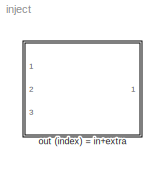
MODEL inject
KIND model
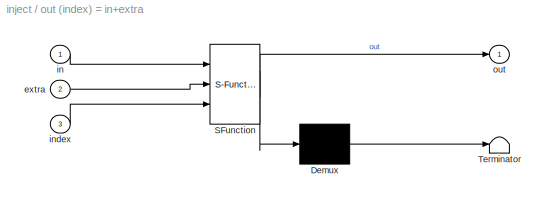
BLOCK [SubSystem] out (index) = in+extra
  FunctionWithSeparateData = off
  MaskDescription = Embedded MATLAB block
  MaskDisplay = disp('inject');
  MaskHideContents = off
  MaskIconFrame = on
  MaskIconOpaque = off
  MaskIconRotate = none
  MaskIconUnits = autoscale
  MaskSelfModifiable = on
  MaskType = Stateflow
  MinAlgLoopOccurrences = off
  Ports = [3, 1]
  RTWSystemCode = Auto
BLOCK [Demux] out (index) = in+extra/ Demux 
  Outputs = 1
  Ports = [1, 1]
BLOCK [S-Function] out (index) = in+extra/ SFunction 
  FunctionName = sf_sfun
  PortCounts = [3 2]
  Ports = [3, 2]
  Tag = Stateflow S-Function inject 2
BLOCK [Terminator] out (index) = in+extra/ Terminator 
BLOCK [Inport] out (index) = in+extra/extra
  IconDisplay = Port number
  Port = 2
BLOCK [Inport] out (index) = in+extra/in
  IconDisplay = Port number
BLOCK [Inport] out (index) = in+extra/index
  IconDisplay = Port number
  Port = 3
BLOCK [Outport] out (index) = in+extra/out
  BusOutputAsStruct = off
  IconDisplay = Port number
LINE out (index) = in+extra/ Demux :1 -> out (index) = in+extra/ Terminator :1
LINE out (index) = in+extra/ SFunction :1 -> out (index) = in+extra/ Demux :1
LINE out (index) = in+extra/ SFunction :2 -> out (index) = in+extra/out:1
LINE out (index) = in+extra/extra:1 -> out (index) = in+extra/ SFunction :2
LINE out (index) = in+extra/in:1 -> out (index) = in+extra/ SFunction :1
LINE out (index) = in+extra/index:1 -> out (index) = in+extra/ SFunction :3
CHART out (index) = in+extra states=1 transitions=1
  STATE_LABEL 'eML_blk_kernel()'
